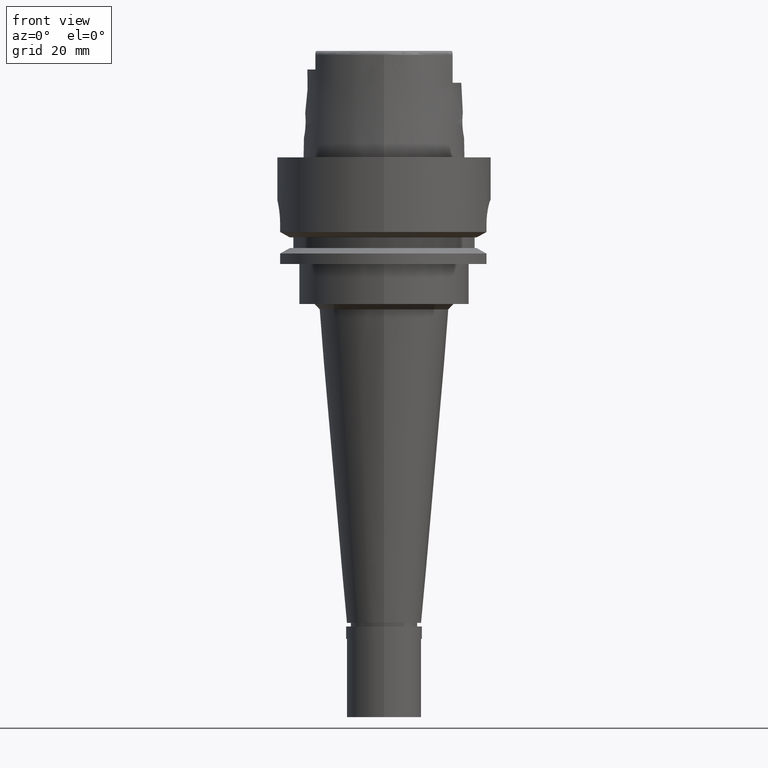
[diagram: clean part render]
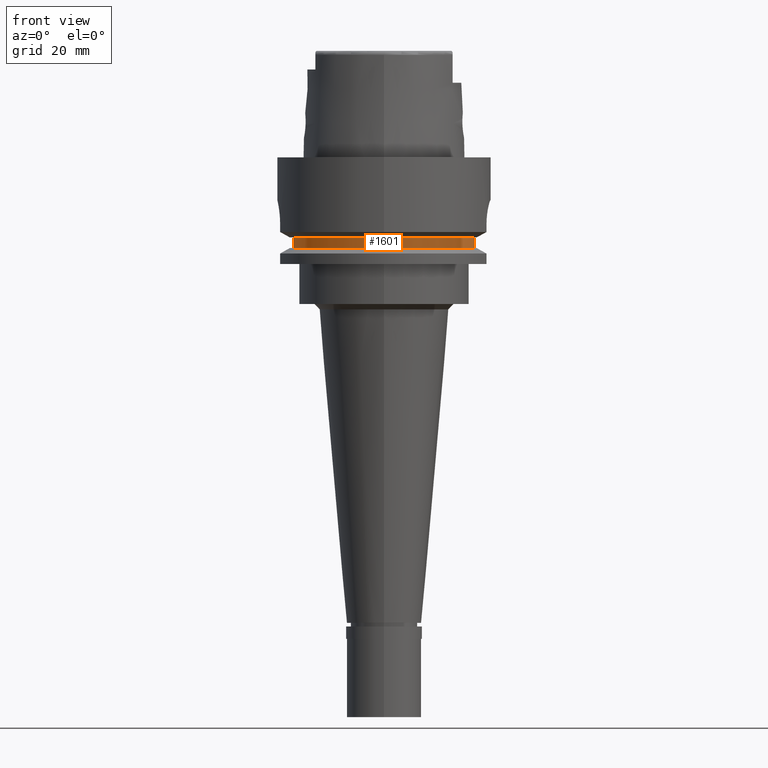
[diagram: same view with one face highlighted and labeled with its STEP entity id]
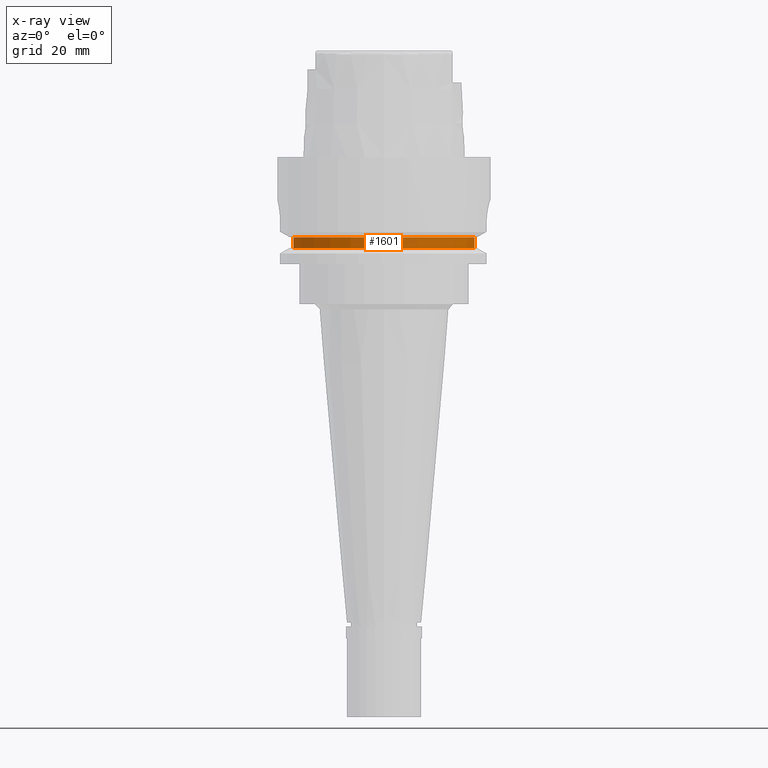
[diagram: x-ray of the same camera — body ghosted, the highlighted face saturated]
A machine part, front view. The second image highlights one B-rep face of the part: STEP entity #1601.
The next image is the same camera in x-ray: the body ghosted, the highlighted face saturated — about 0% of this face is hidden behind the body in this view.
In plain terms, the highlighted cylindrical surface (partial cylindrical patch) has radius 17.4 mm, axis along (0, 0, -1).
Its self-contained STEP definition (entity closure, byte-faithful):
#289 = LINE ( 'NONE', #3153, #3673 ) ;
#345 = CYLINDRICAL_SURFACE ( 'NONE', #533, 17.39999999999999858 ) ;
#533 = AXIS2_PLACEMENT_3D ( 'NONE', #1970, #2413, #4844 ) ;
#606 = CIRCLE ( 'NONE', #3482, 17.39999999999999858 ) ;
#969 = VERTEX_POINT ( 'NONE', #4689 ) ;
#1009 = EDGE_CURVE ( 'NONE', #1429, #969, #2761, .T. ) ;
#1097 = AXIS2_PLACEMENT_3D ( 'NONE', #2471, #4511, #2004 ) ;
#1110 = VERTEX_POINT ( 'NONE', #2393 ) ;
#1123 = DIRECTION ( 'NONE',  ( 0.0000000000000000000, -3.885780586187999929E-14, 1.000000000000000000 ) ) ;
#1165 = EDGE_CURVE ( 'NONE', #1110, #969, #3709, .T. ) ;
#1406 = ORIENTED_EDGE ( 'NONE', *, *, #2259, .T. ) ;
#1416 = EDGE_CURVE ( 'NONE', #1110, #4212, #289, .T. ) ;
#1429 = VERTEX_POINT ( 'NONE', #3949 ) ;
#1601 = ADVANCED_FACE ( 'NONE', ( #2049 ), #345, .T. ) ;
#1950 = CARTESIAN_POINT ( 'NONE',  ( 17.00000000000000000, -3.709447398197999846, -15.00000000000000000 ) ) ;
#1970 = CARTESIAN_POINT ( 'NONE',  ( 0.0000000000000000000, 1.543667290324999758E-14, 26.05000000000000071 ) ) ;
#2004 = DIRECTION ( 'NONE',  ( -0.9770114942528667079, -0.2131866320803924297, 0.0000000000000000000 ) ) ;
#2049 = FACE_OUTER_BOUND ( 'NONE', #2934, .T. ) ;
#2259 = EDGE_CURVE ( 'NONE', #1429, #4212, #606, .T. ) ;
#2297 = ORIENTED_EDGE ( 'NONE', *, *, #1009, .F. ) ;
#2393 = CARTESIAN_POINT ( 'NONE',  ( -17.00000000000000000, -3.709447398197999846, -17.00000000000000000 ) ) ;
#2405 = ORIENTED_EDGE ( 'NONE', *, *, #1416, .F. ) ;
#2413 = DIRECTION ( 'NONE',  ( 0.0000000000000000000, 0.0000000000000000000, -1.000000000000000000 ) ) ;
#2471 = CARTESIAN_POINT ( 'NONE',  ( 0.0000000000000000000, 1.543667290324999758E-14, -17.00000000000000000 ) ) ;
#2746 = DIRECTION ( 'NONE',  ( 0.0000000000000000000, 0.0000000000000000000, -1.000000000000000000 ) ) ;
#2761 = LINE ( 'NONE', #1950, #4300 ) ;
#2887 = DIRECTION ( 'NONE',  ( 0.0000000000000000000, -1.000000000000000000, 0.0000000000000000000 ) ) ;
#2934 = EDGE_LOOP ( 'NONE', ( #4613, #2297, #1406, #2405 ) ) ;
#3153 = CARTESIAN_POINT ( 'NONE',  ( -17.00000000000000000, -3.709447398197999846, -17.00000000000000000 ) ) ;
#3482 = AXIS2_PLACEMENT_3D ( 'NONE', #4473, #2746, #2887 ) ;
#3673 = VECTOR ( 'NONE', #1123, 1000.000000000000000 ) ;
#3709 = CIRCLE ( 'NONE', #1097, 17.40000000000000213 ) ;
#3949 = CARTESIAN_POINT ( 'NONE',  ( 17.00000000000000000, -3.709447398197999846, -15.00000000000000000 ) ) ;
#4136 = CARTESIAN_POINT ( 'NONE',  ( -17.00000000000000000, -3.709447398197999846, -15.00000000000000000 ) ) ;
#4212 = VERTEX_POINT ( 'NONE', #4136 ) ;
#4275 = DIRECTION ( 'NONE',  ( 0.0000000000000000000, -3.841371665202999978E-14, -1.000000000000000000 ) ) ;
#4300 = VECTOR ( 'NONE', #4275, 1000.000000000000000 ) ;
#4473 = CARTESIAN_POINT ( 'NONE',  ( 0.0000000000000000000, 1.543667290324999758E-14, -15.00000000000000000 ) ) ;
#4511 = DIRECTION ( 'NONE',  ( 0.0000000000000000000, 0.0000000000000000000, 1.000000000000000000 ) ) ;
#4613 = ORIENTED_EDGE ( 'NONE', *, *, #1165, .T. ) ;
#4689 = CARTESIAN_POINT ( 'NONE',  ( 17.00000000000000000, -3.709447398197999846, -17.00000000000000000 ) ) ;
#4844 = DIRECTION ( 'NONE',  ( 0.0000000000000000000, -1.000000000000000000, 0.0000000000000000000 ) ) ;